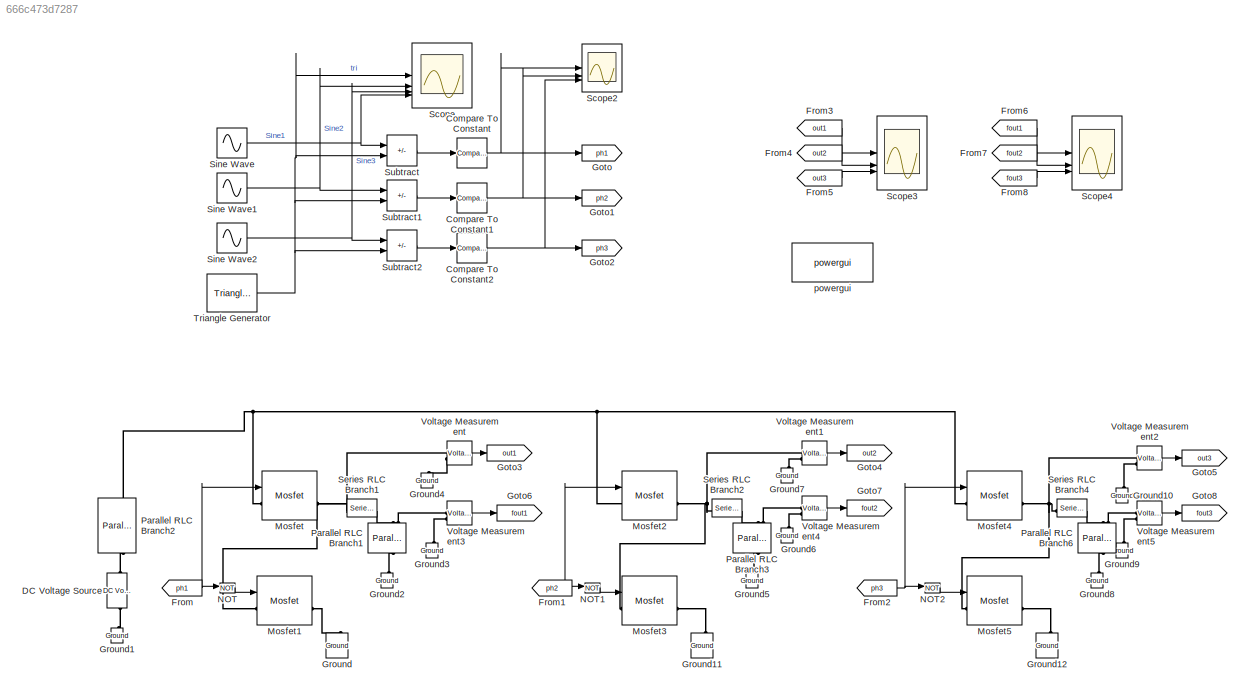
MODEL slx_666c473d7287
KIND model
CONFIG AbsTol = auto
CONFIG EnableMultiTasking = off
CONFIG FixedStep = auto
CONFIG MaxStep = 1e-6
CONFIG MinStep = auto
CONFIG RelTol = 1e-3
CONFIG SampleTimeConstraint = Unconstrained
CONFIG SolverName = VariableStepAuto
CONFIG StartTime = 0.0
CONFIG StopTime = 0.1
BLOCK [Reference] Compare To Constant  REF=simulink/Logic and Bit
Operations/Compare
To Constant
  SourceBlock = simulink/Logic and Bit\nOperations/Compare\nTo Constant
  SourceType = Compare To Constant
BLOCK [Reference] Compare To Constant1  REF=simulink/Logic and Bit
Operations/Compare
To Constant
  SourceBlock = simulink/Logic and Bit\nOperations/Compare\nTo Constant
  SourceType = Compare To Constant
BLOCK [Reference] Compare To Constant2  REF=simulink/Logic and Bit
Operations/Compare
To Constant
  SourceBlock = simulink/Logic and Bit\nOperations/Compare\nTo Constant
  SourceType = Compare To Constant
BLOCK [Reference] DC Voltage Source  REF=spsDCVoltageSourceLib/DC Voltage Source
  LibrarySourceBlock = sps_lib/Sources/DC Voltage Source
  SourceBlock = spsDCVoltageSourceLib/DC Voltage Source
  SourceType = DC Voltage Source
BLOCK [From] From
  GotoTag = ph1
BLOCK [From] From1
  GotoTag = ph2
BLOCK [From] From2
  GotoTag = ph3
BLOCK [From] From3
  GotoTag = out1
BLOCK [From] From4
  GotoTag = out2
BLOCK [From] From5
  GotoTag = out3
BLOCK [From] From6
  GotoTag = fout1
BLOCK [From] From7
  GotoTag = fout2
BLOCK [From] From8
  GotoTag = fout3
BLOCK [Goto] Goto
  GotoTag = ph1
BLOCK [Goto] Goto1
  GotoTag = ph2
BLOCK [Goto] Goto2
  GotoTag = ph3
BLOCK [Goto] Goto3
  GotoTag = out1
BLOCK [Goto] Goto4
  GotoTag = out2
BLOCK [Goto] Goto5
  GotoTag = out3
BLOCK [Goto] Goto6
  GotoTag = fout1
BLOCK [Goto] Goto7
  GotoTag = fout2
BLOCK [Goto] Goto8
  GotoTag = fout3
BLOCK [Reference] Ground  REF=spsGroundLib/Ground
  LibrarySourceBlock = sps_lib/Utilities/Ground
  NameLocation = right
  SourceBlock = spsGroundLib/Ground
  SourceType = Ground
BLOCK [Reference] Ground1  REF=spsGroundLib/Ground
  LibrarySourceBlock = sps_lib/Utilities/Ground
  NameLocation = right
  SourceBlock = spsGroundLib/Ground
  SourceType = Ground
BLOCK [Reference] Ground10  REF=spsGroundLib/Ground
  LibrarySourceBlock = sps_lib/Utilities/Ground
  NameLocation = right
  SourceBlock = spsGroundLib/Ground
  SourceType = Ground
BLOCK [Reference] Ground11  REF=spsGroundLib/Ground
  LibrarySourceBlock = sps_lib/Utilities/Ground
  NameLocation = right
  SourceBlock = spsGroundLib/Ground
  SourceType = Ground
BLOCK [Reference] Ground12  REF=spsGroundLib/Ground
  LibrarySourceBlock = sps_lib/Utilities/Ground
  NameLocation = right
  SourceBlock = spsGroundLib/Ground
  SourceType = Ground
BLOCK [Reference] Ground2  REF=spsGroundLib/Ground
  LibrarySourceBlock = sps_lib/Utilities/Ground
  NameLocation = right
  SourceBlock = spsGroundLib/Ground
  SourceType = Ground
BLOCK [Reference] Ground3  REF=spsGroundLib/Ground
  LibrarySourceBlock = sps_lib/Utilities/Ground
  NameLocation = right
  SourceBlock = spsGroundLib/Ground
  SourceType = Ground
BLOCK [Reference] Ground4  REF=spsGroundLib/Ground
  LibrarySourceBlock = sps_lib/Utilities/Ground
  NameLocation = right
  SourceBlock = spsGroundLib/Ground
  SourceType = Ground
BLOCK [Reference] Ground5  REF=spsGroundLib/Ground
  LibrarySourceBlock = sps_lib/Utilities/Ground
  NameLocation = right
  SourceBlock = spsGroundLib/Ground
  SourceType = Ground
BLOCK [Reference] Ground6  REF=spsGroundLib/Ground
  LibrarySourceBlock = sps_lib/Utilities/Ground
  NameLocation = right
  SourceBlock = spsGroundLib/Ground
  SourceType = Ground
BLOCK [Reference] Ground7  REF=spsGroundLib/Ground
  LibrarySourceBlock = sps_lib/Utilities/Ground
  NameLocation = right
  SourceBlock = spsGroundLib/Ground
  SourceType = Ground
BLOCK [Reference] Ground8  REF=spsGroundLib/Ground
  LibrarySourceBlock = sps_lib/Utilities/Ground
  NameLocation = right
  SourceBlock = spsGroundLib/Ground
  SourceType = Ground
BLOCK [Reference] Ground9  REF=spsGroundLib/Ground
  LibrarySourceBlock = sps_lib/Utilities/Ground
  NameLocation = right
  SourceBlock = spsGroundLib/Ground
  SourceType = Ground
BLOCK [Reference] Mosfet  REF=spsMosfetLib/Mosfet
  LibrarySourceBlock = sps_lib/Power Electronics/Mosfet
  SourceBlock = spsMosfetLib/Mosfet
  SourceType = Mosfet
BLOCK [Reference] Mosfet1  REF=spsMosfetLib/Mosfet
  LibrarySourceBlock = sps_lib/Power Electronics/Mosfet
  SourceBlock = spsMosfetLib/Mosfet
  SourceType = Mosfet
BLOCK [Reference] Mosfet2  REF=spsMosfetLib/Mosfet
  LibrarySourceBlock = sps_lib/Power Electronics/Mosfet
  SourceBlock = spsMosfetLib/Mosfet
  SourceType = Mosfet
BLOCK [Reference] Mosfet3  REF=spsMosfetLib/Mosfet
  LibrarySourceBlock = sps_lib/Power Electronics/Mosfet
  SourceBlock = spsMosfetLib/Mosfet
  SourceType = Mosfet
BLOCK [Reference] Mosfet4  REF=spsMosfetLib/Mosfet
  LibrarySourceBlock = sps_lib/Power Electronics/Mosfet
  SourceBlock = spsMosfetLib/Mosfet
  SourceType = Mosfet
BLOCK [Reference] Mosfet5  REF=spsMosfetLib/Mosfet
  LibrarySourceBlock = sps_lib/Power Electronics/Mosfet
  SourceBlock = spsMosfetLib/Mosfet
  SourceType = Mosfet
BLOCK [Logic] NOT
  AllPortsSameDT = off
  IconShape = distinctive
  Operator = NOT
  OutDataTypeStr = boolean
BLOCK [Logic] NOT1
  AllPortsSameDT = off
  IconShape = distinctive
  Operator = NOT
  OutDataTypeStr = boolean
BLOCK [Logic] NOT2
  AllPortsSameDT = off
  IconShape = distinctive
  Operator = NOT
  OutDataTypeStr = boolean
BLOCK [Reference] Parallel RLC Branch1  REF=spsParallelRLCBranchLib/Parallel RLC Branch
  AttributesFormatString = \n
  LibrarySourceBlock = sps_lib/Passives/Parallel RLC Branch
  NameLocation = left
  SourceBlock = spsParallelRLCBranchLib/Parallel RLC Branch
  SourceType = Parallel RLC Branch
BLOCK [Reference] Parallel RLC Branch2  REF=spsParallelRLCBranchLib/Parallel RLC Branch
  AttributesFormatString = \n
  LibrarySourceBlock = sps_lib/Passives/Parallel RLC Branch
  NameLocation = left
  SourceBlock = spsParallelRLCBranchLib/Parallel RLC Branch
  SourceType = Parallel RLC Branch
BLOCK [Reference] Parallel RLC Branch3  REF=spsParallelRLCBranchLib/Parallel RLC Branch
  AttributesFormatString = \n
  LibrarySourceBlock = sps_lib/Passives/Parallel RLC Branch
  NameLocation = left
  SourceBlock = spsParallelRLCBranchLib/Parallel RLC Branch
  SourceType = Parallel RLC Branch
BLOCK [Reference] Parallel RLC Branch6  REF=spsParallelRLCBranchLib/Parallel RLC Branch
  AttributesFormatString = \n
  LibrarySourceBlock = sps_lib/Passives/Parallel RLC Branch
  NameLocation = left
  SourceBlock = spsParallelRLCBranchLib/Parallel RLC Branch
  SourceType = Parallel RLC Branch
BLOCK [Scope] Scope
  Floating = off
  NumInputPorts = 4
  ScopeSpecificationString = Simulink.scopes.TimeScopeBlockCfg('CurrentConfiguration', extmgr.ConfigurationSet(extmgr.Configuration('Core','General UI',true,'FigureColor',[0 0 0]),extmgr.Configuration('Core','Source UI',true),extmgr.Configuration('Sources','WiredSimulink',true),extmgr.Configuration('Visuals','Time Domain',true,'SerializedDisplays',{struct('MinYLimReal','-1.25','MaxYLimReal','1.25','YLabelReal','','MinYLimMag'...<+2233ch>
BLOCK [Scope] Scope2
  Floating = off
  NumInputPorts = 3
  ScopeSpecificationString = Simulink.scopes.TimeScopeBlockCfg('CurrentConfiguration', extmgr.ConfigurationSet(extmgr.Configuration('Core','General UI',true),extmgr.Configuration('Core','Source UI',true),extmgr.Configuration('Sources','WiredSimulink',true,'DataLoggingVariableName','ScopeData2'),extmgr.Configuration('Visuals','Time Domain',true,'SerializedDisplays',{struct('MinYLimReal','-0.125','MaxYLimReal','1.07234','YLabel...<+3054ch>
BLOCK [Scope] Scope3
  Commented = on
  Floating = off
  NumInputPorts = 3
  ScopeSpecificationString = Simulink.scopes.TimeScopeBlockCfg('CurrentConfiguration', extmgr.ConfigurationSet(extmgr.Configuration('Core','General UI',true),extmgr.Configuration('Core','Source UI',true),extmgr.Configuration('Sources','WiredSimulink',true,'DataLoggingVariableName','ScopeData3'),extmgr.Configuration('Visuals','Time Domain',true,'SerializedDisplays',{struct('MinYLimReal','-1.62712','MaxYLimReal','14.0305','YLab...<+3069ch>
BLOCK [Scope] Scope4
  Floating = off
  NumInputPorts = 3
  ScopeSpecificationString = Simulink.scopes.TimeScopeBlockCfg('CurrentConfiguration', extmgr.ConfigurationSet(extmgr.Configuration('Core','General UI',true),extmgr.Configuration('Core','Source UI',true),extmgr.Configuration('Sources','WiredSimulink',true,'DataLoggingVariableName','ScopeData4'),extmgr.Configuration('Visuals','Time Domain',true,'SerializedDisplays',{struct('MinYLimReal','-2.02341','MaxYLimReal','13.48135','YLa...<+3068ch>
BLOCK [Reference] Series RLC Branch1  REF=spsSeriesRLCBranchLib/Series RLC Branch
  LibrarySourceBlock = sps_lib/Passives/Series RLC Branch
  SourceBlock = spsSeriesRLCBranchLib/Series RLC Branch
  SourceType = Series RLC Branch
BLOCK [Reference] Series RLC Branch2  REF=spsSeriesRLCBranchLib/Series RLC Branch
  LibrarySourceBlock = sps_lib/Passives/Series RLC Branch
  SourceBlock = spsSeriesRLCBranchLib/Series RLC Branch
  SourceType = Series RLC Branch
BLOCK [Reference] Series RLC Branch4  REF=spsSeriesRLCBranchLib/Series RLC Branch
  LibrarySourceBlock = sps_lib/Passives/Series RLC Branch
  SourceBlock = spsSeriesRLCBranchLib/Series RLC Branch
  SourceType = Series RLC Branch
BLOCK [Sin] Sine Wave
  Amplitude = 1 * m_index
  Frequency = 2*pi*50
  Phase = (4*pi)/3
  SampleTime = 0
BLOCK [Sin] Sine Wave1
  Amplitude = 1 * m_index
  Frequency = 2*pi*50
  Phase = (2*pi)/3
  SampleTime = 0
BLOCK [Sin] Sine Wave2
  Amplitude = 1 * m_index
  Frequency = 2*pi*50
  SampleTime = 0
BLOCK [Sum] Subtract
  IconShape = rectangular
  Inputs = +-
BLOCK [Sum] Subtract1
  IconShape = rectangular
  Inputs = +-
BLOCK [Sum] Subtract2
  IconShape = rectangular
  Inputs = +-
BLOCK [Reference] Triangle Generator  REF=spsTriangleGeneratorLib/Triangle
Generator
  LibrarySourceBlock = sps_lib/Sources/Signal Generator Sources/Triangle\nGenerator
  SourceBlock = spsTriangleGeneratorLib/Triangle\nGenerator
  SourceType = Triangle Generator
BLOCK [Reference] Voltage Measurement  REF=spsVoltageMeasurementLib/Voltage Measurement
  LibrarySourceBlock = sps_lib/Sensors and Measurements/Voltage Measurement
  SourceBlock = spsVoltageMeasurementLib/Voltage Measurement
  SourceType = Voltage Measurement
  UserDataPersistent = on
BLOCK [Reference] Voltage Measurement1  REF=spsVoltageMeasurementLib/Voltage Measurement
  LibrarySourceBlock = sps_lib/Sensors and Measurements/Voltage Measurement
  SourceBlock = spsVoltageMeasurementLib/Voltage Measurement
  SourceType = Voltage Measurement
  UserDataPersistent = on
BLOCK [Reference] Voltage Measurement2  REF=spsVoltageMeasurementLib/Voltage Measurement
  LibrarySourceBlock = sps_lib/Sensors and Measurements/Voltage Measurement
  SourceBlock = spsVoltageMeasurementLib/Voltage Measurement
  SourceType = Voltage Measurement
  UserDataPersistent = on
BLOCK [Reference] Voltage Measurement3  REF=spsVoltageMeasurementLib/Voltage Measurement
  LibrarySourceBlock = sps_lib/Sensors and Measurements/Voltage Measurement
  SourceBlock = spsVoltageMeasurementLib/Voltage Measurement
  SourceType = Voltage Measurement
  UserDataPersistent = on
BLOCK [Reference] Voltage Measurement4  REF=spsVoltageMeasurementLib/Voltage Measurement
  LibrarySourceBlock = sps_lib/Sensors and Measurements/Voltage Measurement
  SourceBlock = spsVoltageMeasurementLib/Voltage Measurement
  SourceType = Voltage Measurement
  UserDataPersistent = on
BLOCK [Reference] Voltage Measurement5  REF=spsVoltageMeasurementLib/Voltage Measurement
  LibrarySourceBlock = sps_lib/Sensors and Measurements/Voltage Measurement
  SourceBlock = spsVoltageMeasurementLib/Voltage Measurement
  SourceType = Voltage Measurement
  UserDataPersistent = on
BLOCK [Reference] powergui  REF=sps_lib/powergui
  LibrarySourceBlock = sps_lib/powergui
  Priority = 1
  SourceBlock = sps_lib/powergui
  SourceType = PSB option menu block
NET Compare To Constant1:1 -> Goto1:1, Scope2:2
NET Compare To Constant2:1 -> Goto2:1, Scope2:3
NET Compare To Constant:1 -> Goto:1, Scope2:1
NET From1:1 -> Mosfet2:1, NOT1:1
NET From2:1 -> Mosfet4:1, NOT2:1
LINE From3:1 -> Scope3:1
LINE From4:1 -> Scope3:2
LINE From5:1 -> Scope3:3
LINE From6:1 -> Scope4:1
LINE From7:1 -> Scope4:2
LINE From8:1 -> Scope4:3
NET From:1 -> Mosfet:1, NOT:1
LINE NOT1:1 -> Mosfet3:1
LINE NOT2:1 -> Mosfet5:1
LINE NOT:1 -> Mosfet1:1
NET Sine Wave1:1 -> Scope:2, Subtract1:1
NET Sine Wave2:1 -> Scope:3, Subtract2:1
NET Sine Wave:1 -> Scope:4, Subtract:1
LINE Subtract1:1 -> Compare To Constant1:1
LINE Subtract2:1 -> Compare To Constant2:1
LINE Subtract:1 -> Compare To Constant:1
NET Triangle Generator:1 -> Scope:1, Subtract1:2, Subtract2:2, Subtract:2
LINE Voltage Measurement1:1 -> Goto4:1
LINE Voltage Measurement2:1 -> Goto5:1
LINE Voltage Measurement3:1 -> Goto6:1
LINE Voltage Measurement4:1 -> Goto7:1
LINE Voltage Measurement5:1 -> Goto8:1
LINE Voltage Measurement:1 -> Goto3:1
PLINE DC Voltage Source:LConn1 -- Ground1:LConn1
PLINE DC Voltage Source:RConn1 -- Parallel RLC Branch2:RConn1
PLINE Ground10:LConn1 -- Voltage Measurement2:LConn2
PLINE Ground11:LConn1 -- Mosfet3:RConn1
PLINE Ground12:LConn1 -- Mosfet5:RConn1
PLINE Ground2:LConn1 -- Parallel RLC Branch1:RConn1
PLINE Ground3:LConn1 -- Voltage Measurement3:LConn2
PLINE Ground4:LConn1 -- Voltage Measurement:LConn2
PLINE Ground5:LConn1 -- Parallel RLC Branch3:RConn1
PLINE Ground6:LConn1 -- Voltage Measurement4:LConn2
PLINE Ground7:LConn1 -- Voltage Measurement1:LConn2
PLINE Ground8:LConn1 -- Parallel RLC Branch6:RConn1
PLINE Ground9:LConn1 -- Voltage Measurement5:LConn2
PLINE Ground:LConn1 -- Mosfet1:RConn1
PNET net1: Mosfet1:LConn1 -- Mosfet:RConn1 -- Series RLC Branch1:LConn1 -- Voltage Measurement:LConn1
PNET net2: Mosfet2:LConn1 -- Mosfet4:LConn1 -- Mosfet:LConn1 -- Parallel RLC Branch2:LConn1
PNET net3: Mosfet2:RConn1 -- Mosfet3:LConn1 -- Series RLC Branch2:LConn1 -- Voltage Measurement1:LConn1
PNET net4: Mosfet4:RConn1 -- Mosfet5:LConn1 -- Series RLC Branch4:LConn1 -- Voltage Measurement2:LConn1
PNET net5: Parallel RLC Branch1:LConn1 -- Series RLC Branch1:RConn1 -- Voltage Measurement3:LConn1
PNET net6: Parallel RLC Branch3:LConn1 -- Series RLC Branch2:RConn1 -- Voltage Measurement4:LConn1
PNET net7: Parallel RLC Branch6:LConn1 -- Series RLC Branch4:RConn1 -- Voltage Measurement5:LConn1
note: NET lines group one-source signal fan-out (src -> all destinations, sorted); 1:1 wires keep LINE; PNET lines group multi-terminal physical nets as a canonical sorted terminal list (undirected conserving connections); 2-terminal nets keep the pairwise PLINE form
